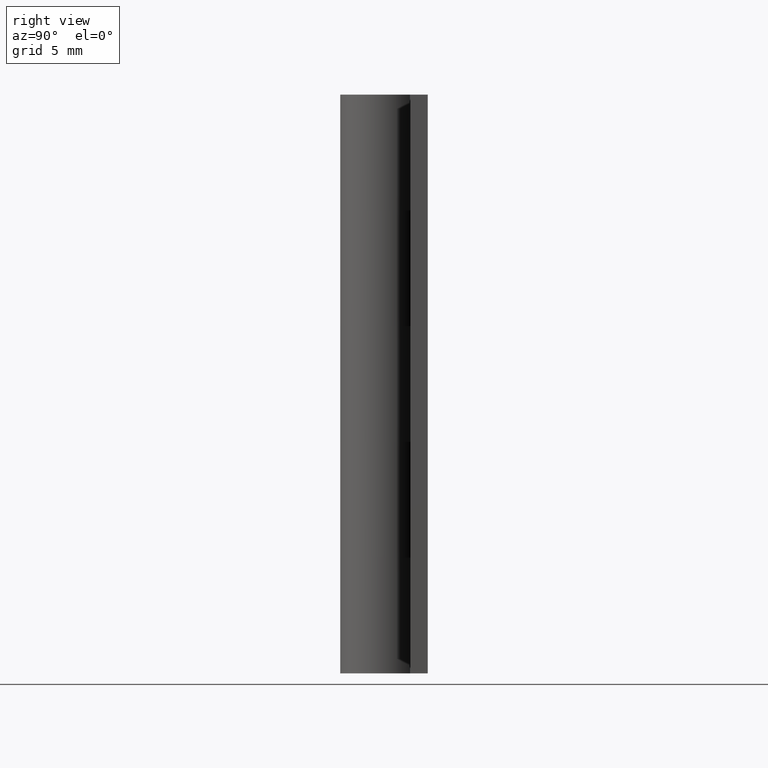
[diagram: clean part render]
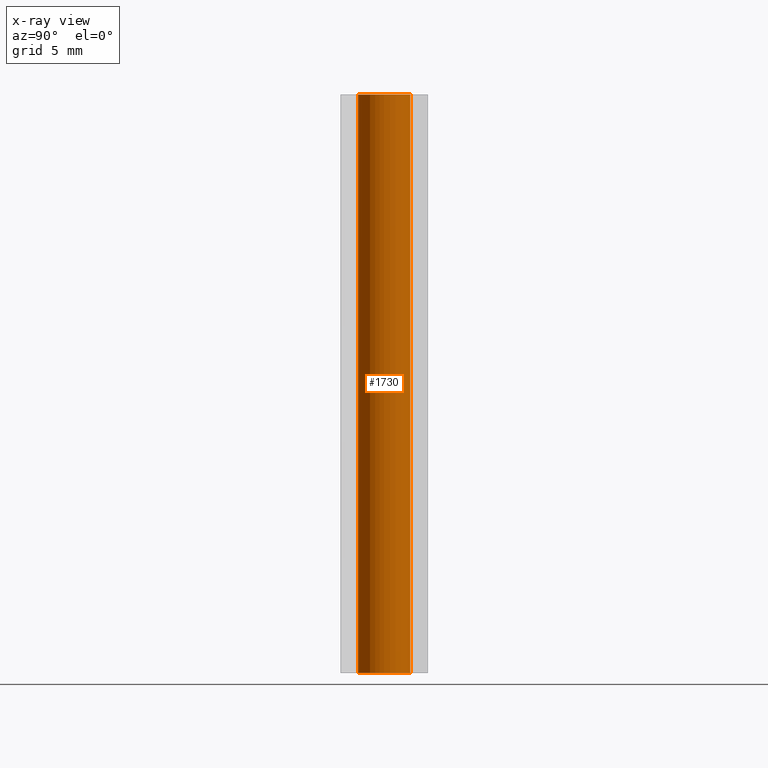
[diagram: x-ray — body ghosted, one internal face saturated and labeled with its STEP entity id]
A machine part, right view, then the same camera in x-ray: the body is ghosted and one INTERNAL B-rep face — a face not visible from any outside direction — is saturated and labeled: STEP entity #1730.
In plain terms, the highlighted face is a freeform B-spline surface patch.
Its self-contained STEP definition (entity closure, byte-faithful):
#1628=CARTESIAN_POINT('',(0.177051351985138,-1.489514289545500,33.825000000000003));
#1629=CARTESIAN_POINT('',(0.134422092956966,-1.494581423172908,33.825000000000017));
#1630=CARTESIAN_POINT('',(0.091572809302285,-1.497202197632800,33.825000000000010));
#1631=CARTESIAN_POINT('',(-1.405629388330515,-1.588775006935085,33.825000000000010));
#1632=CARTESIAN_POINT('',(-1.497202197632800,-0.091572809302285,33.825000000000010));
#1633=CARTESIAN_POINT('',(-1.588775006935085,1.405629388330515,33.825000000000010));
#1634=CARTESIAN_POINT('',(-0.091572809302285,1.497202197632800,33.825000000000010));
#1635=CARTESIAN_POINT('',(0.177051351985138,-1.489514289545500,-0.845625000000006));
#1636=CARTESIAN_POINT('',(0.134422092956966,-1.494581423172908,-0.845625000000006));
#1637=CARTESIAN_POINT('',(0.091572809302285,-1.497202197632800,-0.845625000000005));
#1638=CARTESIAN_POINT('',(-1.405629388330515,-1.588775006935085,-0.845625000000005));
#1639=CARTESIAN_POINT('',(-1.497202197632800,-0.091572809302285,-0.845625000000005));
#1640=CARTESIAN_POINT('',(-1.588775006935085,1.405629388330515,-0.845625000000005));
#1641=CARTESIAN_POINT('',(-0.091572809302285,1.497202197632800,-0.845625000000005));
#1649=(BOUNDED_SURFACE()B_SPLINE_SURFACE(2,1,((#1628,#1635),(#1629,#1636),(#1630,#1637),(#1631,#1638),(#1632,#1639),(#1633,#1640),(#1634,#1641)),.UNSPECIFIED.,.F.,.F.,.U.)B_SPLINE_SURFACE_WITH_KNOTS((3,2,2,3),(2,2),(3.078760800517997,3.141592653589793,4.712388980384690,6.283185307179586),(0.0,34.670625000000022),.UNSPECIFIED.)GEOMETRIC_REPRESENTATION_ITEM()RATIONAL_B_SPLINE_SURFACE(((0.977505800795127,0.977505800795127),(0.988284271247462,0.988284271247462),(1.0,1.0),(0.707106781186548,0.707106781186548),(1.0,1.0),(0.707106781186548,0.707106781186548),(1.0,1.0)))REPRESENTATION_ITEM('')SURFACE());
#1650=CARTESIAN_POINT('',(0.177051352070279,-1.489514289535379,1.646868E-015));
#1651=VERTEX_POINT('',#1650);
#1652=CARTESIAN_POINT('',(-1.500000000000000,0.0,0.0));
#1653=VERTEX_POINT('',#1652);
#1654=CARTESIAN_POINT('',(0.177051352070279,-1.489514289535380,1.646868E-015));
#1655=CARTESIAN_POINT('',(0.088836179563906,-1.500000000000000,0.0));
#1656=CARTESIAN_POINT('',(0.0,-1.500000000000000,0.0));
#1657=CARTESIAN_POINT('',(-1.500000000000000,-1.500000000000000,0.0));
#1658=CARTESIAN_POINT('',(-1.500000000000000,0.0,0.0));
#1666=(BOUNDED_CURVE()B_SPLINE_CURVE(2,(#1654,#1655,#1656,#1657,#1658),.UNSPECIFIED.,.F.,.U.)B_SPLINE_CURVE_WITH_KNOTS((3,2,3),(0.229562473496324,0.250000000000000,0.500000000000000),.UNSPECIFIED.)CURVE()GEOMETRIC_REPRESENTATION_ITEM()RATIONAL_B_SPLINE_CURVE((0.956026754150017,0.976055948311012,1.0,0.707106781186548,1.0))REPRESENTATION_ITEM(''));
#1667=EDGE_CURVE('',#1651,#1653,#1666,.T.);
#1668=ORIENTED_EDGE('',*,*,#1667,.F.);
#1669=CARTESIAN_POINT('',(0.177051352070279,-1.489514289535379,33.0));
#1670=VERTEX_POINT('',#1669);
#1671=CARTESIAN_POINT('',(0.177051352070279,-1.489514289535379,33.0));
#1672=CARTESIAN_POINT('',(0.177051352070279,-1.489514289535379,1.646868E-015));
#1673=QUASI_UNIFORM_CURVE('',1,(#1671,#1672),.UNSPECIFIED.,.F.,.U.);
#1674=EDGE_CURVE('',#1670,#1651,#1673,.T.);
#1675=ORIENTED_EDGE('',*,*,#1674,.F.);
#1676=CARTESIAN_POINT('',(-1.500000000000000,0.0,33.0));
#1677=VERTEX_POINT('',#1676);
#1678=CARTESIAN_POINT('',(0.177051352070279,-1.489514289535380,33.0));
#1679=CARTESIAN_POINT('',(0.088836179563906,-1.500000000000000,33.0));
#1680=CARTESIAN_POINT('',(0.0,-1.500000000000000,33.0));
#1681=CARTESIAN_POINT('',(-1.500000000000000,-1.500000000000000,33.0));
#1682=CARTESIAN_POINT('',(-1.500000000000000,0.0,33.0));
#1690=(BOUNDED_CURVE()B_SPLINE_CURVE(2,(#1678,#1679,#1680,#1681,#1682),.UNSPECIFIED.,.F.,.U.)B_SPLINE_CURVE_WITH_KNOTS((3,2,3),(0.229562473496324,0.250000000000000,0.500000000000000),.UNSPECIFIED.)CURVE()GEOMETRIC_REPRESENTATION_ITEM()RATIONAL_B_SPLINE_CURVE((0.956026754150017,0.976055948311012,1.0,0.707106781186548,1.0))REPRESENTATION_ITEM(''));
#1691=EDGE_CURVE('',#1670,#1677,#1690,.T.);
#1692=ORIENTED_EDGE('',*,*,#1691,.T.);
#1693=CARTESIAN_POINT('',(-0.091572809398664,1.497202197626906,33.0));
#1694=VERTEX_POINT('',#1693);
#1695=CARTESIAN_POINT('',(-1.500000000000000,0.0,33.0));
#1696=CARTESIAN_POINT('',(-1.500000000000001,1.411059100176536,33.000000000000007));
#1697=CARTESIAN_POINT('',(-0.091572809398664,1.497202197626905,33.000000000000007));
#1705=(BOUNDED_CURVE()B_SPLINE_CURVE(2,(#1695,#1696,#1697),.UNSPECIFIED.,.F.,.U.)B_SPLINE_CURVE_WITH_KNOTS((3,3),(0.500000000000000,0.739332962219754),.UNSPECIFIED.)CURVE()GEOMETRIC_REPRESENTATION_ITEM()RATIONAL_B_SPLINE_CURVE((1.0,0.719603993309192,0.976072041625592))REPRESENTATION_ITEM(''));
#1706=EDGE_CURVE('',#1677,#1694,#1705,.T.);
#1707=ORIENTED_EDGE('',*,*,#1706,.T.);
#1708=CARTESIAN_POINT('',(-0.091572809398665,1.497202197626905,-2.220446E-016));
#1709=VERTEX_POINT('',#1708);
#1710=CARTESIAN_POINT('',(-0.091572809398664,1.497202197626906,33.0));
#1711=CARTESIAN_POINT('',(-0.091572809398665,1.497202197626905,-2.220446E-016));
#1712=QUASI_UNIFORM_CURVE('',1,(#1710,#1711),.UNSPECIFIED.,.F.,.U.);
#1713=EDGE_CURVE('',#1694,#1709,#1712,.T.);
#1714=ORIENTED_EDGE('',*,*,#1713,.T.);
#1715=CARTESIAN_POINT('',(-1.500000000000000,0.0,0.0));
#1716=CARTESIAN_POINT('',(-1.500000000000001,1.411059100176536,0.0));
#1717=CARTESIAN_POINT('',(-0.091572809398665,1.497202197626905,-2.220446E-016));
#1725=(BOUNDED_CURVE()B_SPLINE_CURVE(2,(#1715,#1716,#1717),.UNSPECIFIED.,.F.,.U.)B_SPLINE_CURVE_WITH_KNOTS((3,3),(0.500000000000000,0.739332962219754),.UNSPECIFIED.)CURVE()GEOMETRIC_REPRESENTATION_ITEM()RATIONAL_B_SPLINE_CURVE((1.0,0.719603993309192,0.976072041625592))REPRESENTATION_ITEM(''));
#1726=EDGE_CURVE('',#1653,#1709,#1725,.T.);
#1727=ORIENTED_EDGE('',*,*,#1726,.F.);
#1728=EDGE_LOOP('',(#1668,#1675,#1692,#1707,#1714,#1727));
#1729=FACE_OUTER_BOUND('',#1728,.T.);
#1730=ADVANCED_FACE('',(#1729),#1649,.T.);